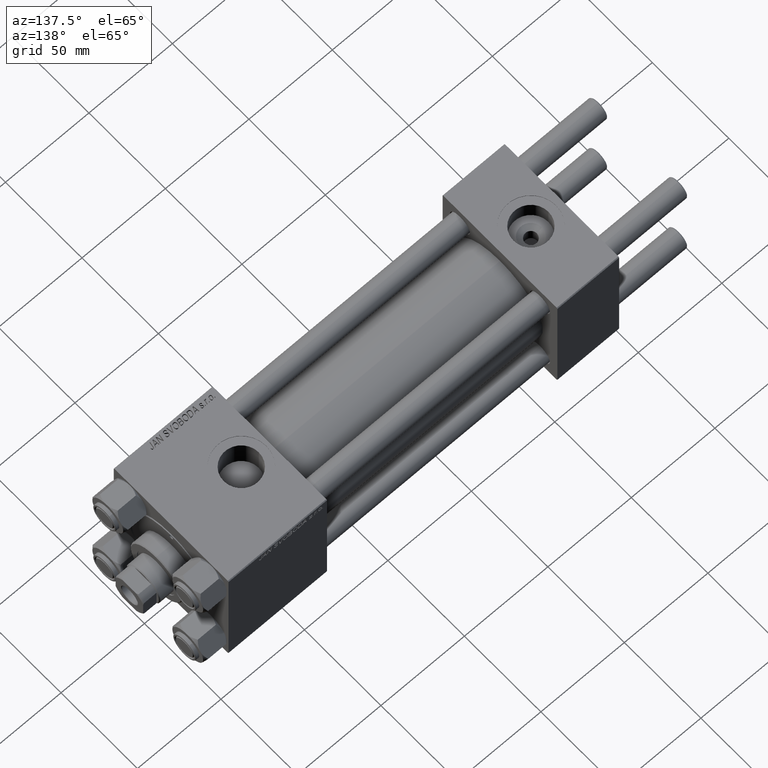
[diagram: clean part render]
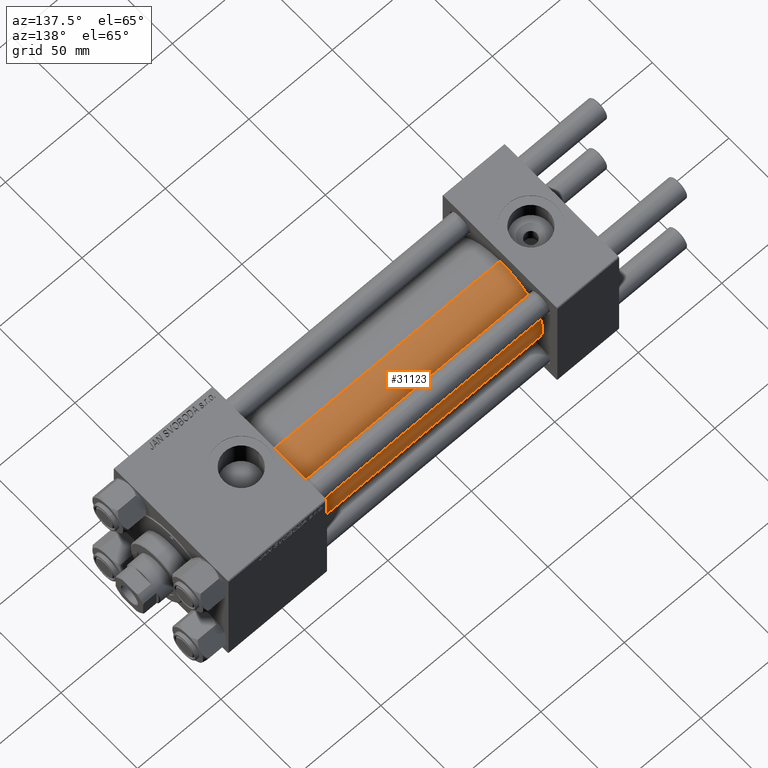
[diagram: same view with one face highlighted and labeled with its STEP entity id]
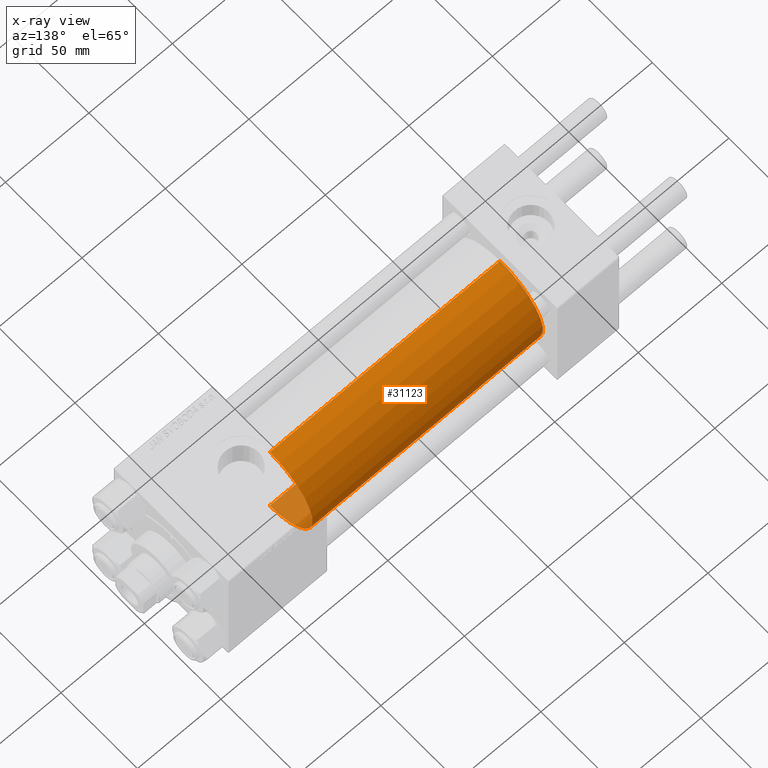
[diagram: x-ray of the same camera — body ghosted, the highlighted face saturated]
A machine part, auxiliary view. The second image highlights one B-rep face of the part: STEP entity #31123.
The next image is the same camera in x-ray: the body ghosted, the highlighted face saturated — about 4% of this face is hidden behind the body in this view.
In plain terms, the highlighted cylindrical surface (partial cylindrical patch) has radius 28 mm, axis along (-1, -0, -0).
Its self-contained STEP definition (entity closure, byte-faithful):
#645 = DIRECTION ( 'NONE',  ( -1.000000000000000000, -0.000000000000000000, -0.000000000000000000 ) ) ;
#647 = DIRECTION ( 'NONE',  ( 1.000000000000000000, -0.000000000000000000, 0.000000000000000000 ) ) ;
#8394 = CARTESIAN_POINT ( 'NONE',  ( 37.00000000000000711, 3.429011037612589276E-15, -28.00000000000000000 ) ) ;
#10315 = CIRCLE ( 'NONE', #42520, 28.00000000000000000 ) ;
#10534 = CARTESIAN_POINT ( 'NONE',  ( 37.00000000000000711, 0.000000000000000000, 28.00000000000000000 ) ) ;
#11159 = CARTESIAN_POINT ( 'NONE',  ( 175.0000000000000284, 3.429011037612589276E-15, -28.00000000000000000 ) ) ;
#11930 = ORIENTED_EDGE ( 'NONE', *, *, #32741, .T. ) ;
#12024 = CARTESIAN_POINT ( 'NONE',  ( 37.00000000000000711, 0.000000000000000000, 0.000000000000000000 ) ) ;
#12065 = AXIS2_PLACEMENT_3D ( 'NONE', #48632, #40579, #29722 ) ;
#13898 = VERTEX_POINT ( 'NONE', #37692 ) ;
#14089 = FACE_OUTER_BOUND ( 'NONE', #49043, .T. ) ;
#15883 = EDGE_CURVE ( 'NONE', #30839, #29066, #31198, .T. ) ;
#16277 = EDGE_CURVE ( 'NONE', #13898, #30839, #10315, .T. ) ;
#16572 = CARTESIAN_POINT ( 'NONE',  ( 175.0000000000000284, 0.000000000000000000, 28.00000000000000000 ) ) ;
#17514 = DIRECTION ( 'NONE',  ( 1.000000000000000000, 0.000000000000000000, 0.000000000000000000 ) ) ;
#17642 = CIRCLE ( 'NONE', #20880, 28.00000000000000000 ) ;
#18416 = EDGE_CURVE ( 'NONE', #45388, #29066, #17642, .T. ) ;
#20880 = AXIS2_PLACEMENT_3D ( 'NONE', #12024, #647, #23145 ) ;
#21052 = CARTESIAN_POINT ( 'NONE',  ( 175.0000000000000284, 0.000000000000000000, 0.000000000000000000 ) ) ;
#22792 = LINE ( 'NONE', #11159, #49922 ) ;
#23145 = DIRECTION ( 'NONE',  ( 0.000000000000000000, 0.000000000000000000, 1.000000000000000000 ) ) ;
#29066 = VERTEX_POINT ( 'NONE', #10534 ) ;
#29722 = DIRECTION ( 'NONE',  ( 0.000000000000000000, 0.000000000000000000, 1.000000000000000000 ) ) ;
#29958 = CYLINDRICAL_SURFACE ( 'NONE', #12065, 28.00000000000000000 ) ;
#30839 = VERTEX_POINT ( 'NONE', #32891 ) ;
#31123 = ADVANCED_FACE ( 'NONE', ( #14089 ), #29958, .T. ) ;
#31198 = LINE ( 'NONE', #16572, #44944 ) ;
#32528 = ORIENTED_EDGE ( 'NONE', *, *, #18416, .T. ) ;
#32741 = EDGE_CURVE ( 'NONE', #13898, #45388, #22792, .T. ) ;
#32891 = CARTESIAN_POINT ( 'NONE',  ( 175.0000000000000284, 0.000000000000000000, 28.00000000000000000 ) ) ;
#37692 = CARTESIAN_POINT ( 'NONE',  ( 175.0000000000000284, 3.429011037612589276E-15, -28.00000000000000000 ) ) ;
#39979 = DIRECTION ( 'NONE',  ( 0.000000000000000000, 0.000000000000000000, -1.000000000000000000 ) ) ;
#40579 = DIRECTION ( 'NONE',  ( -1.000000000000000000, -0.000000000000000000, -0.000000000000000000 ) ) ;
#41030 = ORIENTED_EDGE ( 'NONE', *, *, #15883, .F. ) ;
#41959 = DIRECTION ( 'NONE',  ( -1.000000000000000000, -0.000000000000000000, -0.000000000000000000 ) ) ;
#42520 = AXIS2_PLACEMENT_3D ( 'NONE', #21052, #17514, #39979 ) ;
#42878 = ORIENTED_EDGE ( 'NONE', *, *, #16277, .F. ) ;
#44944 = VECTOR ( 'NONE', #645, 1000.000000000000000 ) ;
#45388 = VERTEX_POINT ( 'NONE', #8394 ) ;
#48632 = CARTESIAN_POINT ( 'NONE',  ( 175.0000000000000284, 0.000000000000000000, 0.000000000000000000 ) ) ;
#49043 = EDGE_LOOP ( 'NONE', ( #42878, #11930, #32528, #41030 ) ) ;
#49922 = VECTOR ( 'NONE', #41959, 1000.000000000000000 ) ;